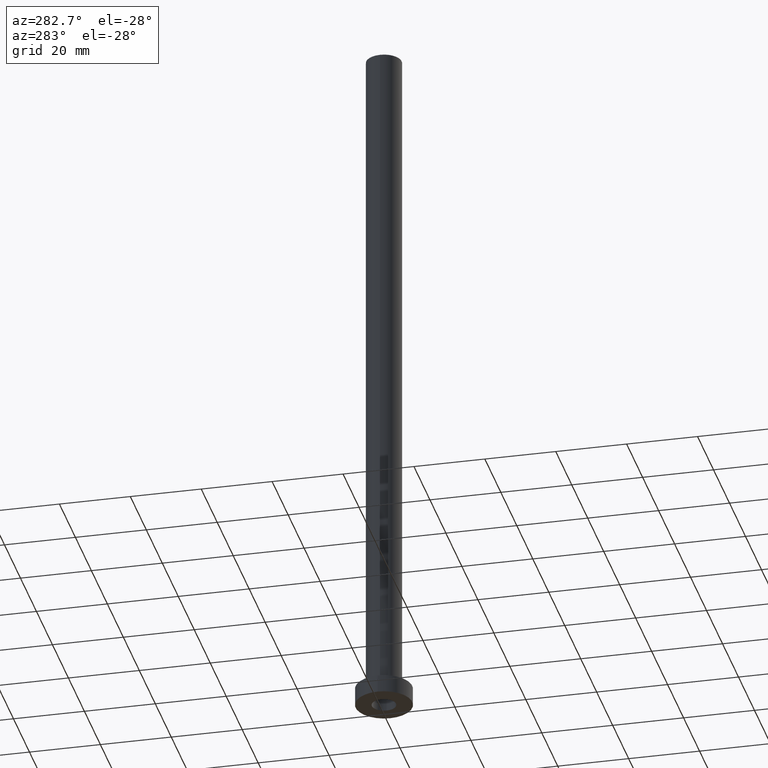
[diagram: clean part render]
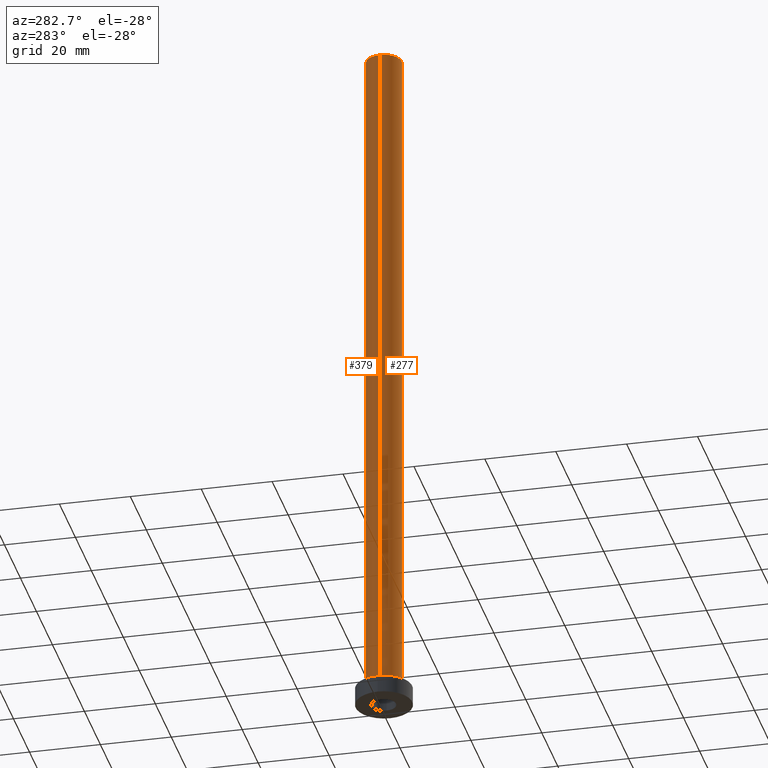
[diagram: same view with one multi-face feature highlighted, each face labeled with its STEP entity id]
A machine part, auxiliary view. The highlighted faces form ONE feature: a constant-radius fillet chain: 2 tangent blend faces with common blend radius 5 mm. The faces share edges in the B-rep.
Their STEP definitions:
[1] entity #379 (Cylinder):
#9 = CARTESIAN_POINT ( 'NONE',  ( -5.000000000000000000, 0.000000000000000000, 200.0000000000000000 ) ) ;
#16 = LINE ( 'NONE', #52, #147 ) ;
#40 = ORIENTED_EDGE ( 'NONE', *, *, #243, .F. ) ;
#44 = VERTEX_POINT ( 'NONE', #9 ) ;
#52 = CARTESIAN_POINT ( 'NONE',  ( -5.000000000000000000, 0.000000000000000000, 200.0000000000000000 ) ) ;
#96 = EDGE_CURVE ( 'NONE', #420, #458, #459, .T. ) ;
#112 = EDGE_CURVE ( 'NONE', #235, #420, #223, .T. ) ;
#124 = CARTESIAN_POINT ( 'NONE',  ( 5.000000000000000000, 6.123233995736766282E-16, 200.0000000000000000 ) ) ;
#147 = VECTOR ( 'NONE', #193, 1000.000000000000000 ) ;
#153 = DIRECTION ( 'NONE',  ( -0.000000000000000000, -0.000000000000000000, -1.000000000000000000 ) ) ;
#154 = FACE_OUTER_BOUND ( 'NONE', #339, .T. ) ;
#158 = CIRCLE ( 'NONE', #209, 5.000000000000000000 ) ;
#159 = CYLINDRICAL_SURFACE ( 'NONE', #274, 5.000000000000000000 ) ;
#186 = DIRECTION ( 'NONE',  ( 0.000000000000000000, 0.000000000000000000, 1.000000000000000000 ) ) ;
#193 = DIRECTION ( 'NONE',  ( -0.000000000000000000, -0.000000000000000000, -1.000000000000000000 ) ) ;
#209 = AXIS2_PLACEMENT_3D ( 'NONE', #396, #186, #442 ) ;
#223 = LINE ( 'NONE', #405, #428 ) ;
#235 = VERTEX_POINT ( 'NONE', #124 ) ;
#243 = EDGE_CURVE ( 'NONE', #44, #458, #16, .T. ) ;
#274 = AXIS2_PLACEMENT_3D ( 'NONE', #368, #334, #300 ) ;
#291 = ORIENTED_EDGE ( 'NONE', *, *, #348, .F. ) ;
#299 = DIRECTION ( 'NONE',  ( 0.000000000000000000, 0.000000000000000000, 1.000000000000000000 ) ) ;
#300 = DIRECTION ( 'NONE',  ( -1.000000000000000000, 0.000000000000000000, 0.000000000000000000 ) ) ;
#305 = CARTESIAN_POINT ( 'NONE',  ( 0.000000000000000000, 0.000000000000000000, 5.500000000000005329 ) ) ;
#309 = CARTESIAN_POINT ( 'NONE',  ( 5.000000000000000000, 6.123233995736766282E-16, 5.500000000000005329 ) ) ;
#313 = CARTESIAN_POINT ( 'NONE',  ( -5.000000000000000000, 0.000000000000000000, 5.500000000000005329 ) ) ;
#334 = DIRECTION ( 'NONE',  ( -0.000000000000000000, -0.000000000000000000, -1.000000000000000000 ) ) ;
#339 = EDGE_LOOP ( 'NONE', ( #291, #431, #350, #40 ) ) ;
#348 = EDGE_CURVE ( 'NONE', #235, #44, #158, .T. ) ;
#350 = ORIENTED_EDGE ( 'NONE', *, *, #96, .T. ) ;
#368 = CARTESIAN_POINT ( 'NONE',  ( 0.000000000000000000, 0.000000000000000000, 200.0000000000000000 ) ) ;
#379 = ADVANCED_FACE ( 'NONE', ( #154 ), #159, .T. ) ;
#386 = AXIS2_PLACEMENT_3D ( 'NONE', #305, #299, #401 ) ;
#396 = CARTESIAN_POINT ( 'NONE',  ( 0.000000000000000000, 0.000000000000000000, 200.0000000000000000 ) ) ;
#401 = DIRECTION ( 'NONE',  ( 1.000000000000000000, 0.000000000000000000, 0.000000000000000000 ) ) ;
#405 = CARTESIAN_POINT ( 'NONE',  ( 5.000000000000000000, 6.123233995736766282E-16, 200.0000000000000000 ) ) ;
#420 = VERTEX_POINT ( 'NONE', #309 ) ;
#428 = VECTOR ( 'NONE', #153, 1000.000000000000000 ) ;
#431 = ORIENTED_EDGE ( 'NONE', *, *, #112, .T. ) ;
#442 = DIRECTION ( 'NONE',  ( 1.000000000000000000, 0.000000000000000000, 0.000000000000000000 ) ) ;
#458 = VERTEX_POINT ( 'NONE', #313 ) ;
#459 = CIRCLE ( 'NONE', #386, 5.000000000000000000 ) ;
[2] entity #277 (Cylinder):
#4 = AXIS2_PLACEMENT_3D ( 'NONE', #5, #176, #324 ) ;
#5 = CARTESIAN_POINT ( 'NONE',  ( 0.000000000000000000, 0.000000000000000000, 5.500000000000005329 ) ) ;
#6 = AXIS2_PLACEMENT_3D ( 'NONE', #315, #100, #168 ) ;
#9 = CARTESIAN_POINT ( 'NONE',  ( -5.000000000000000000, 0.000000000000000000, 200.0000000000000000 ) ) ;
#16 = LINE ( 'NONE', #52, #147 ) ;
#37 = EDGE_CURVE ( 'NONE', #458, #420, #336, .T. ) ;
#44 = VERTEX_POINT ( 'NONE', #9 ) ;
#52 = CARTESIAN_POINT ( 'NONE',  ( -5.000000000000000000, 0.000000000000000000, 200.0000000000000000 ) ) ;
#53 = ORIENTED_EDGE ( 'NONE', *, *, #112, .F. ) ;
#62 = DIRECTION ( 'NONE',  ( 0.000000000000000000, 0.000000000000000000, 1.000000000000000000 ) ) ;
#64 = CIRCLE ( 'NONE', #320, 5.000000000000000000 ) ;
#71 = ORIENTED_EDGE ( 'NONE', *, *, #37, .T. ) ;
#100 = DIRECTION ( 'NONE',  ( -0.000000000000000000, -0.000000000000000000, -1.000000000000000000 ) ) ;
#102 = ORIENTED_EDGE ( 'NONE', *, *, #243, .T. ) ;
#112 = EDGE_CURVE ( 'NONE', #235, #420, #223, .T. ) ;
#124 = CARTESIAN_POINT ( 'NONE',  ( 5.000000000000000000, 6.123233995736766282E-16, 200.0000000000000000 ) ) ;
#147 = VECTOR ( 'NONE', #193, 1000.000000000000000 ) ;
#148 = EDGE_LOOP ( 'NONE', ( #53, #314, #102, #71 ) ) ;
#153 = DIRECTION ( 'NONE',  ( -0.000000000000000000, -0.000000000000000000, -1.000000000000000000 ) ) ;
#163 = DIRECTION ( 'NONE',  ( 1.000000000000000000, 0.000000000000000000, 0.000000000000000000 ) ) ;
#168 = DIRECTION ( 'NONE',  ( -1.000000000000000000, 0.000000000000000000, 0.000000000000000000 ) ) ;
#176 = DIRECTION ( 'NONE',  ( 0.000000000000000000, 0.000000000000000000, 1.000000000000000000 ) ) ;
#193 = DIRECTION ( 'NONE',  ( -0.000000000000000000, -0.000000000000000000, -1.000000000000000000 ) ) ;
#223 = LINE ( 'NONE', #405, #428 ) ;
#235 = VERTEX_POINT ( 'NONE', #124 ) ;
#243 = EDGE_CURVE ( 'NONE', #44, #458, #16, .T. ) ;
#277 = ADVANCED_FACE ( 'NONE', ( #347 ), #380, .T. ) ;
#295 = EDGE_CURVE ( 'NONE', #44, #235, #64, .T. ) ;
#309 = CARTESIAN_POINT ( 'NONE',  ( 5.000000000000000000, 6.123233995736766282E-16, 5.500000000000005329 ) ) ;
#313 = CARTESIAN_POINT ( 'NONE',  ( -5.000000000000000000, 0.000000000000000000, 5.500000000000005329 ) ) ;
#314 = ORIENTED_EDGE ( 'NONE', *, *, #295, .F. ) ;
#315 = CARTESIAN_POINT ( 'NONE',  ( 0.000000000000000000, 0.000000000000000000, 200.0000000000000000 ) ) ;
#320 = AXIS2_PLACEMENT_3D ( 'NONE', #388, #62, #163 ) ;
#324 = DIRECTION ( 'NONE',  ( 1.000000000000000000, 0.000000000000000000, 0.000000000000000000 ) ) ;
#336 = CIRCLE ( 'NONE', #4, 5.000000000000000000 ) ;
#347 = FACE_OUTER_BOUND ( 'NONE', #148, .T. ) ;
#380 = CYLINDRICAL_SURFACE ( 'NONE', #6, 5.000000000000000000 ) ;
#388 = CARTESIAN_POINT ( 'NONE',  ( 0.000000000000000000, 0.000000000000000000, 200.0000000000000000 ) ) ;
#405 = CARTESIAN_POINT ( 'NONE',  ( 5.000000000000000000, 6.123233995736766282E-16, 200.0000000000000000 ) ) ;
#420 = VERTEX_POINT ( 'NONE', #309 ) ;
#428 = VECTOR ( 'NONE', #153, 1000.000000000000000 ) ;
#458 = VERTEX_POINT ( 'NONE', #313 ) ;